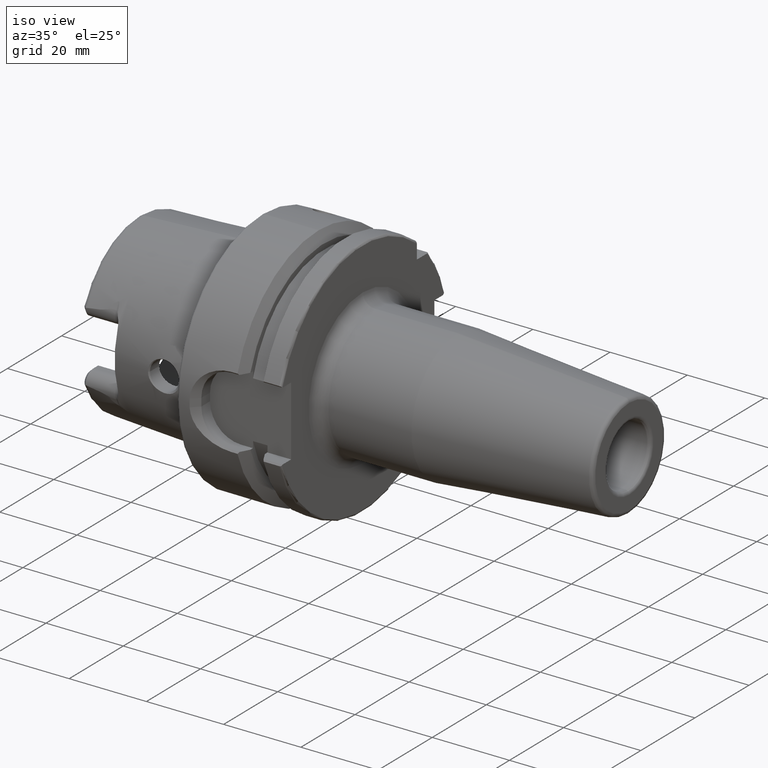
[diagram: clean part render]
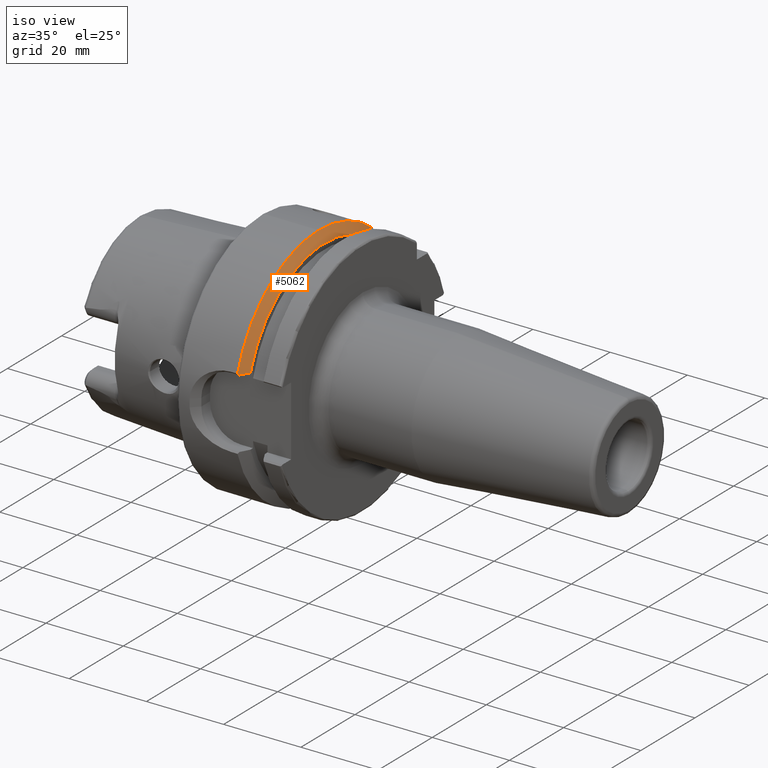
[diagram: same view with one face highlighted and labeled with its STEP entity id]
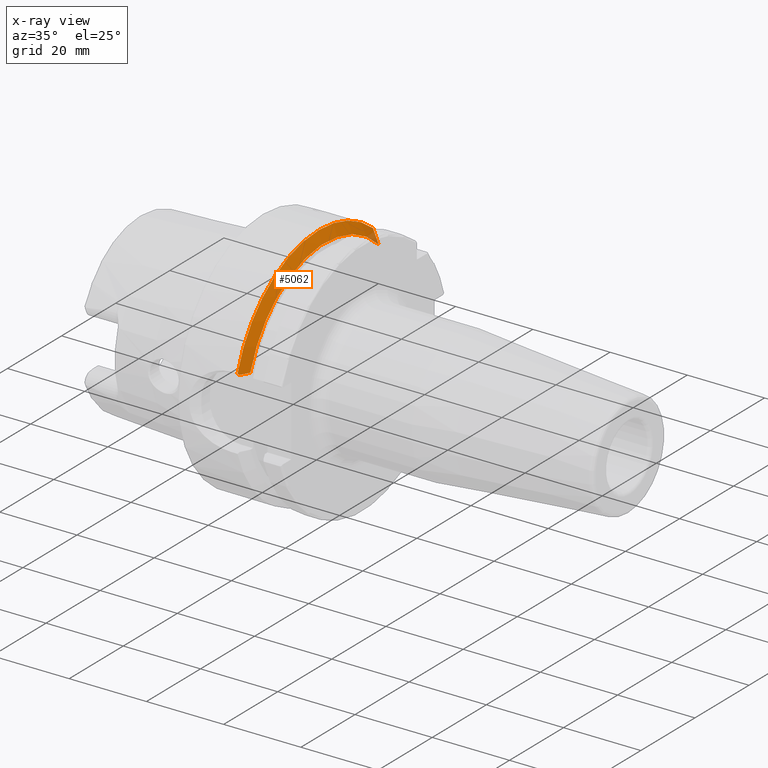
[diagram: x-ray of the same camera — body ghosted, the highlighted face saturated]
A machine part, iso view. The second image highlights one B-rep face of the part: STEP entity #5062.
The next image is the same camera in x-ray: the body ghosted, the highlighted face saturated — about 2% of this face is hidden behind the body in this view.
In plain terms, the highlighted conical surface has half-angle 60 deg.
Its self-contained STEP definition (entity closure, byte-faithful):
#715=CARTESIAN_POINT('',(1.462250090457E1,0.E0,0.E0));
#716=DIRECTION('',(1.E0,0.E0,0.E0));
#717=DIRECTION('',(0.E0,0.E0,1.E0));
#718=AXIS2_PLACEMENT_3D('',#715,#716,#717);
#899=CARTESIAN_POINT('',(1.462250090457E1,0.E0,0.E0));
#900=DIRECTION('',(1.E0,0.E0,0.E0));
#901=DIRECTION('',(0.E0,6.349206349206E-1,7.725773665802E-1));
#902=AXIS2_PLACEMENT_3D('',#899,#900,#901);
#1876=CARTESIAN_POINT('',(1.462250090457E1,-3.007314630073E1,9.373146300730E0));
#1877=CARTESIAN_POINT('',(1.466777137486E1,-3.001053107025E1,9.310531070255E0));
#1878=CARTESIAN_POINT('',(1.475791251295E1,-2.988572482499E1,9.185724824995E0));
#1879=CARTESIAN_POINT('',(1.484725375035E1,-2.976176690400E1,9.061766903997E0));
#1880=CARTESIAN_POINT('',(1.489172432548E1,-2.97E1,9.E0));
#1882=CARTESIAN_POINT('',(1.6125E1,2.E1,2.085835597842E1));
#1883=CARTESIAN_POINT('',(1.597263395735E1,2.E1,2.122397638976E1));
#1884=CARTESIAN_POINT('',(1.565826960383E1,2.E1,2.196910957739E1));
#1885=CARTESIAN_POINT('',(1.515798179355E1,2.E1,2.312741859196E1));
#1886=CARTESIAN_POINT('',(1.480432315424E1,2.E1,2.392855749541E1));
#1887=CARTESIAN_POINT('',(1.462250090457E1,2.E1,2.433618704728E1));
#1889=CARTESIAN_POINT('',(1.6125E1,0.E0,0.E0));
#1890=DIRECTION('',(1.E0,0.E0,0.E0));
#1891=DIRECTION('',(0.E0,6.920991104059E-1,7.218024808598E-1));
#1892=AXIS2_PLACEMENT_3D('',#1889,#1890,#1891);
#1894=CARTESIAN_POINT('',(1.6125E1,-2.746035349595E1,9.E0));
#1895=CARTESIAN_POINT('',(1.599184268889E1,-2.770305988738E1,9.E0));
#1896=CARTESIAN_POINT('',(1.572294078043E1,-2.819256428175E1,9.E0));
#1897=CARTESIAN_POINT('',(1.531187997018E1,-2.893903747046E1,9.E0));
#1898=CARTESIAN_POINT('',(1.503263735229E1,-2.944497148241E1,9.E0));
#1899=CARTESIAN_POINT('',(1.489172432548E1,-2.97E1,9.E0));
#2639=CARTESIAN_POINT('',(1.6125E1,-2.746035349595E1,9.E0));
#2640=VERTEX_POINT('',#2639);
#2662=CARTESIAN_POINT('',(1.462250090457E1,2.E1,2.433618704728E1));
#2664=VERTEX_POINT('',#2662);
#2669=VERTEX_POINT('',#1882);
#2681=CARTESIAN_POINT('',(1.462250090457E1,0.E0,3.15E1));
#2682=VERTEX_POINT('',#2681);
#2865=CARTESIAN_POINT('',(1.462250090457E1,-3.007314630073E1,9.373146300730E0));
#2866=VERTEX_POINT('',#2865);
#2868=VERTEX_POINT('',#1880);
#5045=CARTESIAN_POINT('',(1.537375045228E1,0.E0,0.E0));
#5046=DIRECTION('',(-1.E0,0.E0,0.E0));
#5047=DIRECTION('',(0.E0,0.E0,-1.E0));
#5048=AXIS2_PLACEMENT_3D('',#5045,#5046,#5047);
#5049=CONICAL_SURFACE('',#5048,3.019879765E1,5.999999931725E1);
#5051=ORIENTED_EDGE('',*,*,#5050,.F.);
#5052=ORIENTED_EDGE('',*,*,#3845,.F.);
#5053=ORIENTED_EDGE('',*,*,#3925,.F.);
#5055=ORIENTED_EDGE('',*,*,#5054,.F.);
#5057=ORIENTED_EDGE('',*,*,#5056,.T.);
#5059=ORIENTED_EDGE('',*,*,#5058,.T.);
#5060=EDGE_LOOP('',(#5051,#5052,#5053,#5055,#5057,#5059));
#5061=FACE_OUTER_BOUND('',#5060,.F.);
#5062=ADVANCED_FACE('',(#5061),#5049,.T.);
#719=CIRCLE('',#718,3.15E1);
#903=CIRCLE('',#902,3.15E1);
#1881=B_SPLINE_CURVE_WITH_KNOTS('',3,(#1876,#1877,#1878,#1879,#1880),
.UNSPECIFIED.,.F.,.F.,(4,1,4),(0.E0,5.E-1,1.E0),.UNSPECIFIED.);
#1888=B_SPLINE_CURVE_WITH_KNOTS('',3,(#1882,#1883,#1884,#1885,#1886,#1887),
.UNSPECIFIED.,.F.,.F.,(4,1,1,4),(0.E0,3.333333333333E-1,6.666666666667E-1,1.E0),
.UNSPECIFIED.);
#1893=CIRCLE('',#1892,2.88975953E1);
#1900=B_SPLINE_CURVE_WITH_KNOTS('',3,(#1894,#1895,#1896,#1897,#1898,#1899),
.UNSPECIFIED.,.F.,.F.,(4,1,1,4),(0.E0,3.333333333333E-1,6.666666666667E-1,1.E0),
.UNSPECIFIED.);
#3845=EDGE_CURVE('',#2682,#2866,#719,.T.);
#3925=EDGE_CURVE('',#2664,#2682,#903,.T.);
#5050=EDGE_CURVE('',#2866,#2868,#1881,.T.);
#5054=EDGE_CURVE('',#2669,#2664,#1888,.T.);
#5056=EDGE_CURVE('',#2669,#2640,#1893,.T.);
#5058=EDGE_CURVE('',#2640,#2868,#1900,.T.);